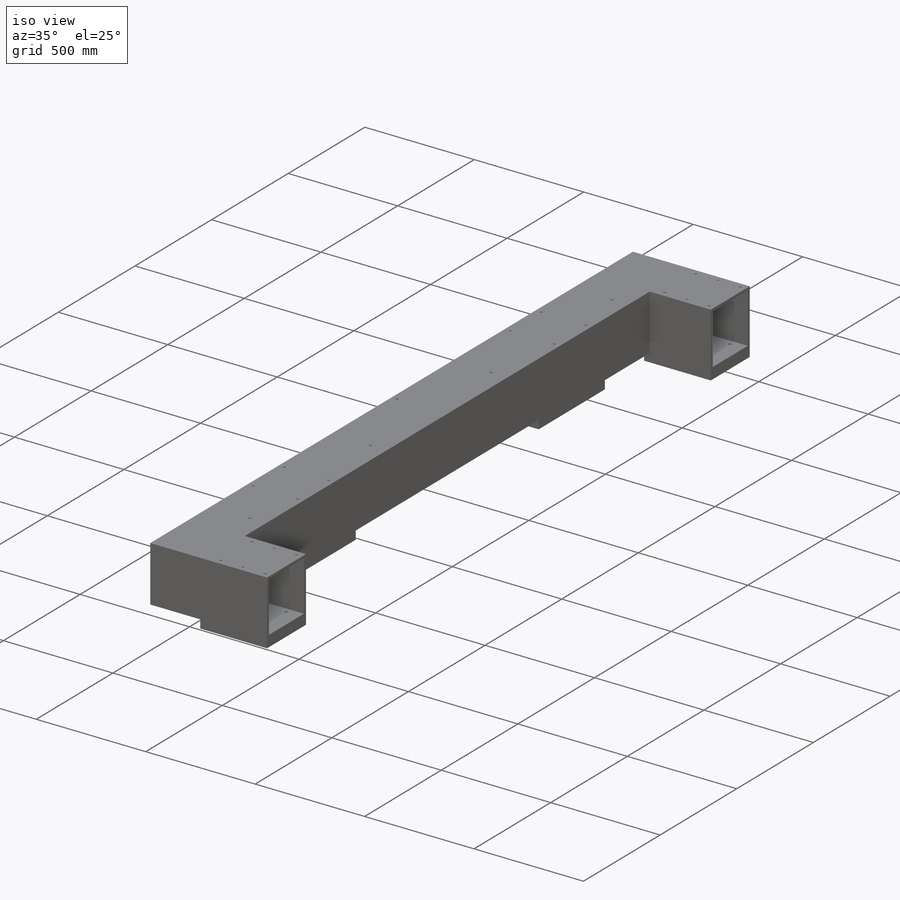
[diagram: iso view]
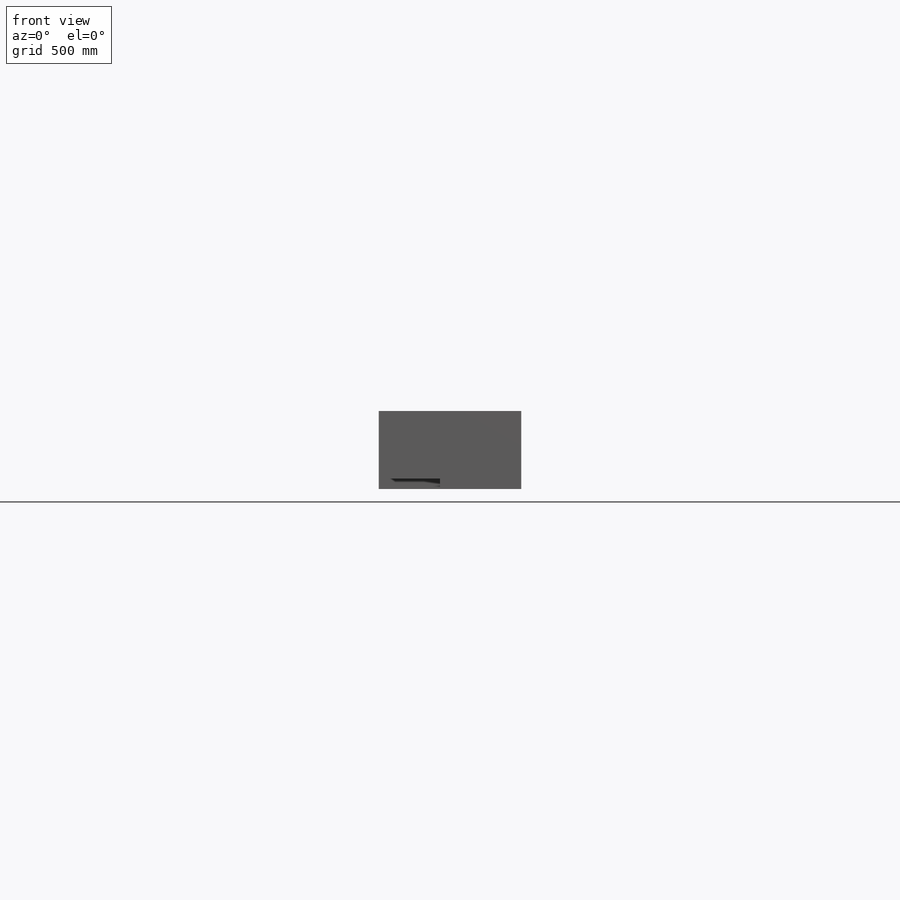
[diagram: front view]
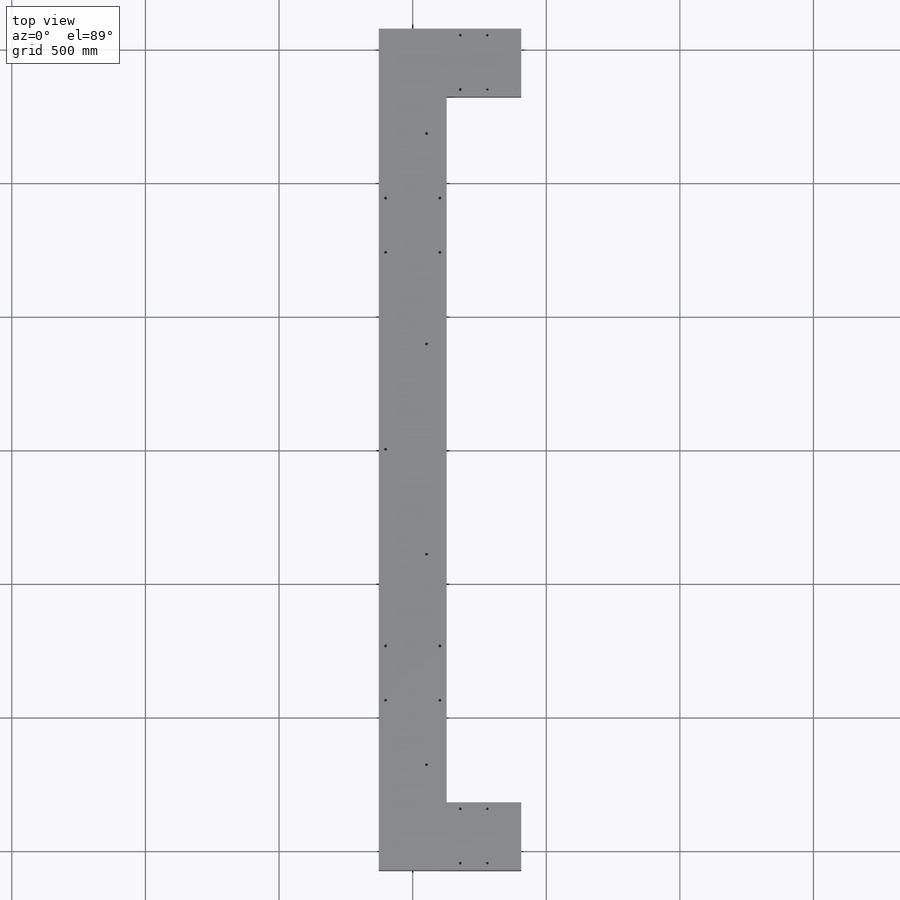
[diagram: top view]
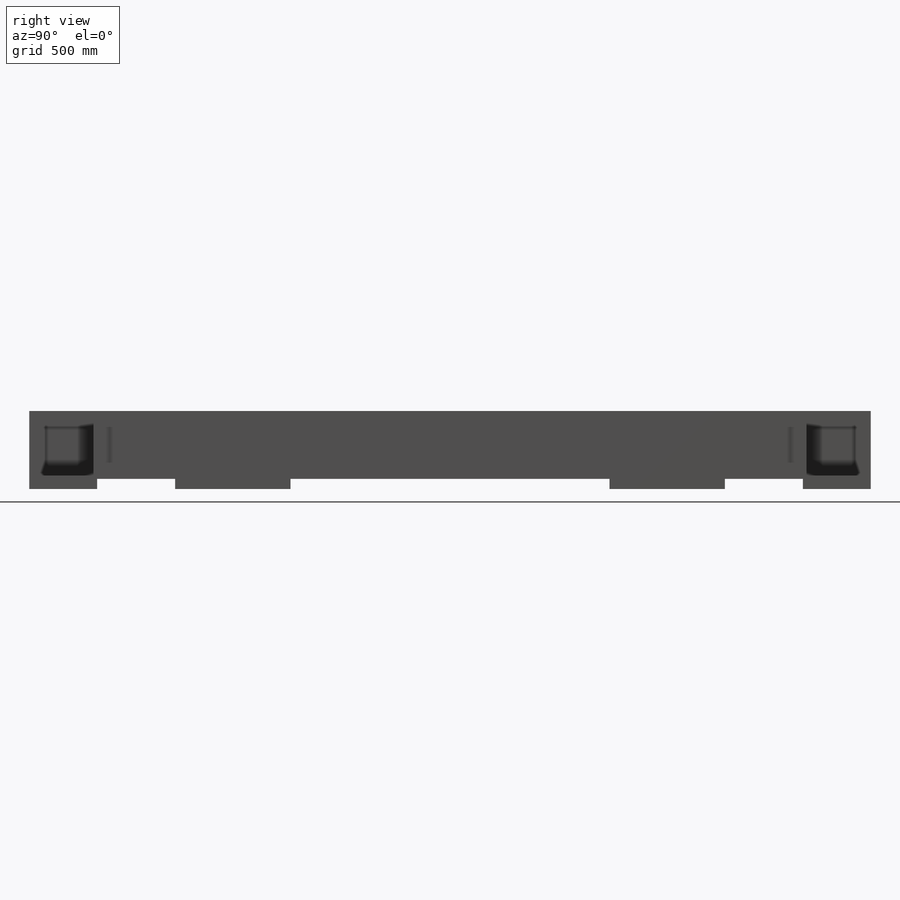
[diagram: right view]
SOLIDWORKS PART (.sldprt)
format: sldprt  version: not decoded by parser v0  size: 703,488 bytes
history: native  units: mm
features: thread x43, sketch x14, cut_extrude x8, plane x6, extrude x5, pattern_linear x2, material x1 (+11 scaffold rows collapsed)
feature tree (90):
  scaffold x11  (default folders/planes/origin — collapsed)
  material  "ASTM A36 Steel"
  plane  "Plane1"
  plane  "Plane2"
  plane  "Plane3"
  sketch  "Sketch1"  dims[D1=254.0mm D2=254.0mm D3=12.7mm D4=12.7mm D5=12.7mm D6=12.7mm]
  extrude  "Base-Extrude"  Depth=1320.8mm
  sketch  "Sketch2"  dims[D1=254.0mm D2=12.7mm D3=12.7mm D4=254.0mm D5=12.7mm D6=12.7mm]
  extrude  "Boss-Extrude1"  Depth=533.4mm
  sketch  "Sketch5"  dims[D1=304.8mm]
  extrude  "Boss-Extrude2"  [1 undecoded]
  sketch  "Sketch4"  dims[c1.D1=647.7mm c1.D2=381.0mm c2.D1=838.2mm c2.D2=381.0mm c2.D3=190.5mm c3.D2=190.5mm c3.D3=431.8mm c3.D1=38.1mm]
  extrude  "Boss-Extrude3"  Depth=38.1mm
  sketch  "Sketch3"  dims[c1.D6=13.4874mm c1.D1=127.0mm c1.D2=88.9mm c1.D3=88.9mm c1.D4=12.7mm c1.D5=279.4mm c1.D7=152.4mm c2.D4=88.9mm c2.D8=~117.185353mm c2.D5=88.9mm c2.D1=381.0mm c2.D3=88.9mm c3.D5=1447.8mm]
  cut_extrude  "Cut-Extrude1"  [1 undecoded]
  pattern_linear  "LPattern1"  Count1=2 Count2=2 Spacing1=177.8mm Spacing2=177.8mm
  sketch  "Sketch6"  dims[c1.D9=14.2875mm c1.D5=6.7564mm c1.D8=7.9248mm c1.D1=50.8mm c1.D2=50.8mm c1.D3=50.8mm c1.D4=50.8mm c2.D5=25.4mm c2.D6=25.4mm c2.D7=25.4mm c2.D8=25.4mm c2.D1=25.4mm c2.D2=330.2mm c2.D3=50.8mm c2.D4=50.8mm c3.D5=165.1mm c3.D2=330.2mm c3.D6=165.1mm c3.D7=203.2mm c3.D10=25.4mm c3.D11=25.4mm]
  cut_extrude  "Cut-Extrude2"  [1 undecoded]
  thread  "Cosmetic Thread32"  Diameter=9.525mm  [1 undecoded]
  thread  "Cosmetic Thread33"  Diameter=9.525mm  [1 undecoded]
  thread  "Cosmetic Thread34"  Diameter=9.525mm  [1 undecoded]
  thread  "Cosmetic Thread35"  Diameter=9.525mm  [1 undecoded]
  thread  "Cosmetic Thread36"  Diameter=15.875mm  [1 undecoded]
  thread  "Cosmetic Thread37"  Diameter=15.875mm  [1 undecoded]
  thread  "Cosmetic Thread38"  Diameter=15.875mm  [1 undecoded]
  thread  "Cosmetic Thread39"  Diameter=15.875mm  [1 undecoded]
  thread  "Cosmetic Thread40"  Diameter=15.875mm  [1 undecoded]
  thread  "Cosmetic Thread41"  Diameter=15.875mm  [1 undecoded]
  thread  "Cosmetic Thread42"  Diameter=15.875mm  [1 undecoded]
  thread  "Cosmetic Thread43"  Diameter=15.875mm  [1 undecoded]
  sketch  "Sketch9"  dims[c1.D5=10.7188mm c1.D1=152.4mm c1.D2=279.4mm c1.D3=63.5mm c1.D4=190.5mm c2.D1=152.4mm]
  cut_extrude  "Cut-Extrude4"  [1 undecoded]
  thread  "Cosmetic Thread22"  Diameter=12.7mm  [1 undecoded]
  thread  "Cosmetic Thread23"  Diameter=12.7mm  [1 undecoded]
  thread  "Cosmetic Thread24"  Diameter=12.7mm  [1 undecoded]
  thread  "Cosmetic Thread25"  Diameter=12.7mm  [1 undecoded]
  thread  "Cosmetic Thread26"  Diameter=12.7mm  [1 undecoded]
  thread  "Cosmetic Thread27"  Diameter=12.7mm  [1 undecoded]
  thread  "Cosmetic Thread28"  Diameter=12.7mm  [1 undecoded]
  thread  "Cosmetic Thread29"  Diameter=12.7mm  [1 undecoded]
  thread  "Cosmetic Thread30"  Diameter=12.7mm  [1 undecoded]
  thread  "Cosmetic Thread31"  Diameter=12.7mm  [1 undecoded]
  sketch  "Sketch10"  dims[D4=10.7188mm D1=~178.78044mm D2=787.4mm D3=393.7mm]
  cut_extrude  "Cut-Extrude5"  [1 undecoded]
  thread  "Cosmetic Thread1"  Diameter=12.7mm  [1 undecoded]
  thread  "Cosmetic Thread2"  Diameter=12.7mm  [1 undecoded]
  thread  "Cosmetic Thread3"  Diameter=12.7mm  [1 undecoded]
  thread  "Cosmetic Thread4"  Diameter=12.7mm  [1 undecoded]
  sketch  "Sketch12"
  extrude  "Boss-Extrude4"  Depth=12.7mm
  sketch  "Sketch15"  dims[D1=0.127mm D2=0.127mm D3=0.127mm D4=0.127mm]
  cut_extrude  "ORIGINAL 3/8 12X TOP HOLE PATT"  Depth=12.446mm
  sketch  "Sketch16"  dims[c1.D3=9.525mm c1.D4=9.525mm c1.D6=9.525mm c1.D1=25.4mm c1.D2=25.4mm c1.D5=25.4mm c2.D6=25.4mm]
  cut_extrude  "Cut-Extrude9"  [1 undecoded]
  pattern_linear  "LPattern2"  Count1=3 Count2=2 Spacing1=101.6mm Spacing2=203.2mm
  sketch  "Sketch11"  dims[c1.D6=10.7188mm c1.D1=25.4mm c1.D2=203.2mm c2.D1=25.4mm c2.D3=838.2mm c2.D4=101.6mm c2.D5=101.6mm]
  cut_extrude  "Cut-Extrude6"  [1 undecoded]
  thread  "Cosmetic Thread5"  Diameter=12.7mm  [1 undecoded]
  thread  "Cosmetic Thread6"  Diameter=12.7mm  [1 undecoded]
  thread  "Cosmetic Thread7"  Diameter=12.7mm  [1 undecoded]
  thread  "Cosmetic Thread8"  Diameter=12.7mm  [1 undecoded]
  thread  "Cosmetic Thread9"  Diameter=12.7mm  [1 undecoded]
  thread  "Cosmetic Thread10"  Diameter=12.7mm  [1 undecoded]
  thread  "Cosmetic Thread11"  Diameter=12.7mm  [1 undecoded]
  thread  "Cosmetic Thread12"  Diameter=12.7mm  [1 undecoded]
  thread  "Cosmetic Thread13"  Diameter=12.7mm  [1 undecoded]
  thread  "Cosmetic Thread14"  Diameter=12.7mm  [1 undecoded]
  thread  "Cosmetic Thread15"  Diameter=12.7mm  [1 undecoded]
  thread  "Cosmetic Thread16"  Diameter=12.7mm  [1 undecoded]
  thread  "Cosmetic Thread17"  Diameter=12.7mm  [1 undecoded]
  thread  "Cosmetic Thread18"  Diameter=12.7mm  [1 undecoded]
  thread  "Cosmetic Thread19"  Diameter=12.7mm  [1 undecoded]
  thread  "Cosmetic Thread20"  Diameter=12.7mm  [1 undecoded]
  sketch  "Sketch17"
  plane  "Plane4"
  plane  "Plane5"
  plane  "Plane6"
  sketch  "Sketch18"  dims[D2=10.7188mm D1=25.4mm]
  cut_extrude  "Cut-Extrude10"  [1 undecoded]
  thread  "Cosmetic Thread21"  Diameter=12.7mm  [1 undecoded]
decode coverage: 62 of 72 modeling features carry decoded parameters
note: ~ marks probable driven/reference dimensions
note: 51 parameter values undecoded
summary: no parameter record found for 8 features
note: suppression state not decoded; provenance and decode notes live in map.json
